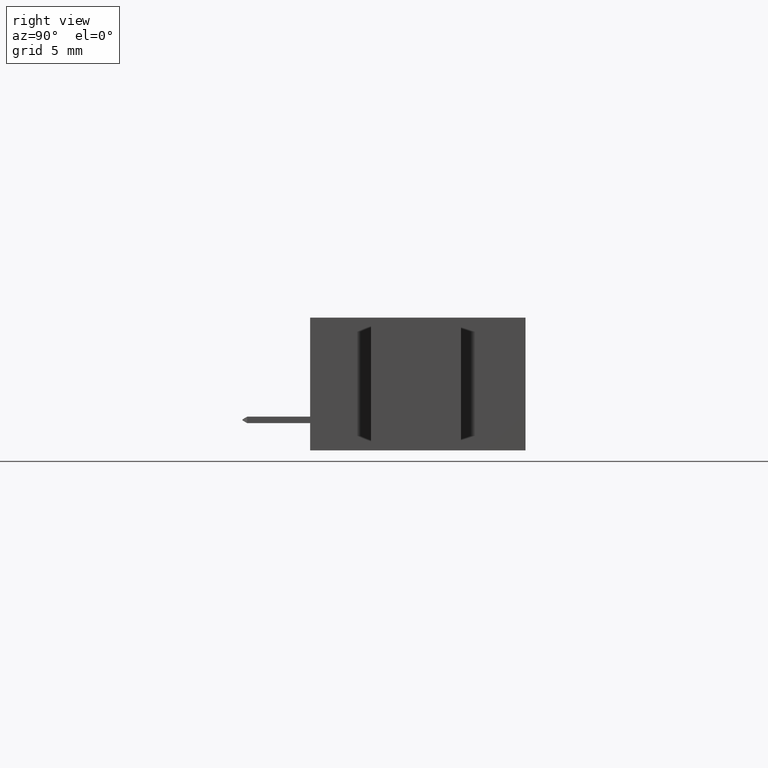
[diagram: clean part render]
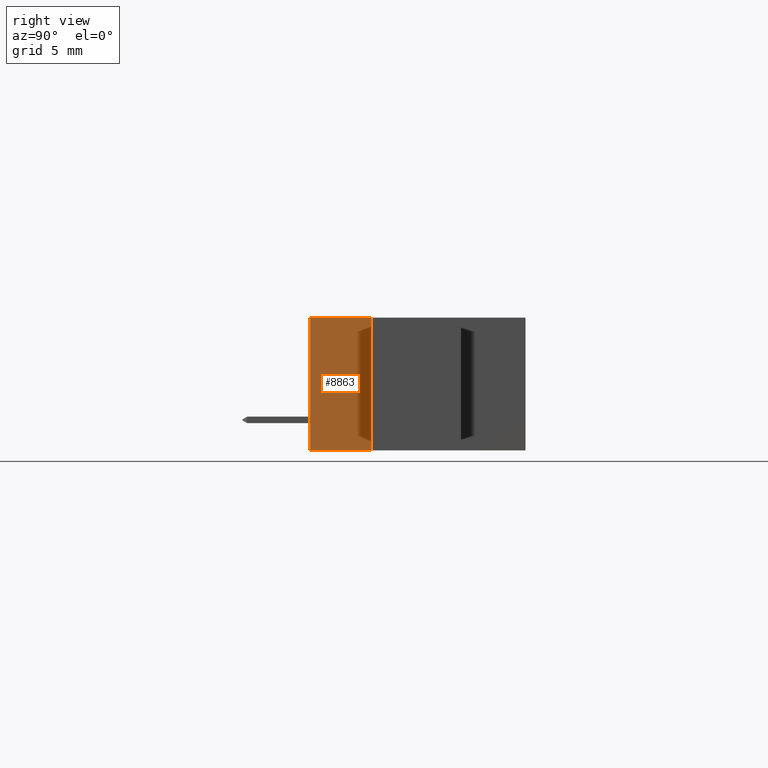
[diagram: same view with one face highlighted and labeled with its STEP entity id]
A machine part, right view. The second image highlights one B-rep face of the part: STEP entity #8863.
In plain terms, the highlighted planar face has unit normal (-1, 0, 0).
Its self-contained STEP definition (entity closure, byte-faithful):
#151 = VECTOR ( 'NONE', #7895, 39.37007874015748100 ) ;
#337 = EDGE_CURVE ( 'NONE', #8585, #6396, #6905, .T. ) ;
#546 = VECTOR ( 'NONE', #1524, 39.37007874015748100 ) ;
#842 = EDGE_LOOP ( 'NONE', ( #2164, #4535, #9774, #8199 ) ) ;
#1090 = CARTESIAN_POINT ( 'NONE',  ( 1.487000000000000800, 0.1699999999999999800, -0.3699999999999998800 ) ) ;
#1152 = AXIS2_PLACEMENT_3D ( 'NONE', #10424, #7028, #7147 ) ;
#1524 = DIRECTION ( 'NONE',  ( 0.0000000000000000000, 0.0000000000000000000, -1.000000000000000000 ) ) ;
#2164 = ORIENTED_EDGE ( 'NONE', *, *, #10388, .T. ) ;
#2281 = CARTESIAN_POINT ( 'NONE',  ( 1.487000000000000800, 0.1699999999999999800, -0.3699999999999998800 ) ) ;
#2834 = FACE_OUTER_BOUND ( 'NONE', #842, .T. ) ;
#3513 = LINE ( 'NONE', #9406, #6814 ) ;
#4053 = LINE ( 'NONE', #7764, #9670 ) ;
#4376 = EDGE_CURVE ( 'NONE', #8629, #9884, #3513, .T. ) ;
#4535 = ORIENTED_EDGE ( 'NONE', *, *, #337, .F. ) ;
#4615 = PLANE ( 'NONE',  #1152 ) ;
#5927 = CARTESIAN_POINT ( 'NONE',  ( 1.487000000000000800, 0.1699999999999999800, 1.386300176634805000E-016 ) ) ;
#6396 = VERTEX_POINT ( 'NONE', #7839 ) ;
#6814 = VECTOR ( 'NONE', #7907, 39.37007874015748100 ) ;
#6905 = LINE ( 'NONE', #2281, #151 ) ;
#7028 = DIRECTION ( 'NONE',  ( -1.000000000000000000, 0.0000000000000000000, 0.0000000000000000000 ) ) ;
#7147 = DIRECTION ( 'NONE',  ( 0.0000000000000000000, 0.0000000000000000000, 1.000000000000000000 ) ) ;
#7162 = EDGE_CURVE ( 'NONE', #8629, #8585, #10476, .T. ) ;
#7764 = CARTESIAN_POINT ( 'NONE',  ( 1.487000000000000800, 0.0000000000000000000, 1.386300176634805000E-016 ) ) ;
#7839 = CARTESIAN_POINT ( 'NONE',  ( 1.487000000000000800, 0.0000000000000000000, -0.3699999999999998800 ) ) ;
#7895 = DIRECTION ( 'NONE',  ( -0.0000000000000000000, -1.000000000000000000, -0.0000000000000000000 ) ) ;
#7907 = DIRECTION ( 'NONE',  ( -0.0000000000000000000, -1.000000000000000000, -0.0000000000000000000 ) ) ;
#8167 = CARTESIAN_POINT ( 'NONE',  ( 1.487000000000000800, 0.1699999999999999800, 1.386300176634805000E-016 ) ) ;
#8199 = ORIENTED_EDGE ( 'NONE', *, *, #4376, .T. ) ;
#8585 = VERTEX_POINT ( 'NONE', #1090 ) ;
#8629 = VERTEX_POINT ( 'NONE', #5927 ) ;
#8655 = DIRECTION ( 'NONE',  ( 0.0000000000000000000, 0.0000000000000000000, -1.000000000000000000 ) ) ;
#8863 = ADVANCED_FACE ( 'NONE', ( #2834 ), #4615, .F. ) ;
#8936 = CARTESIAN_POINT ( 'NONE',  ( 1.487000000000000800, 0.0000000000000000000, 0.0000000000000000000 ) ) ;
#9406 = CARTESIAN_POINT ( 'NONE',  ( 1.487000000000000800, 0.1699999999999999800, 1.386300176634805000E-016 ) ) ;
#9670 = VECTOR ( 'NONE', #8655, 39.37007874015748100 ) ;
#9774 = ORIENTED_EDGE ( 'NONE', *, *, #7162, .F. ) ;
#9884 = VERTEX_POINT ( 'NONE', #8936 ) ;
#10388 = EDGE_CURVE ( 'NONE', #9884, #6396, #4053, .T. ) ;
#10424 = CARTESIAN_POINT ( 'NONE',  ( 1.487000000000000800, 0.1699999999999999800, 1.386300176634805000E-016 ) ) ;
#10476 = LINE ( 'NONE', #8167, #546 ) ;